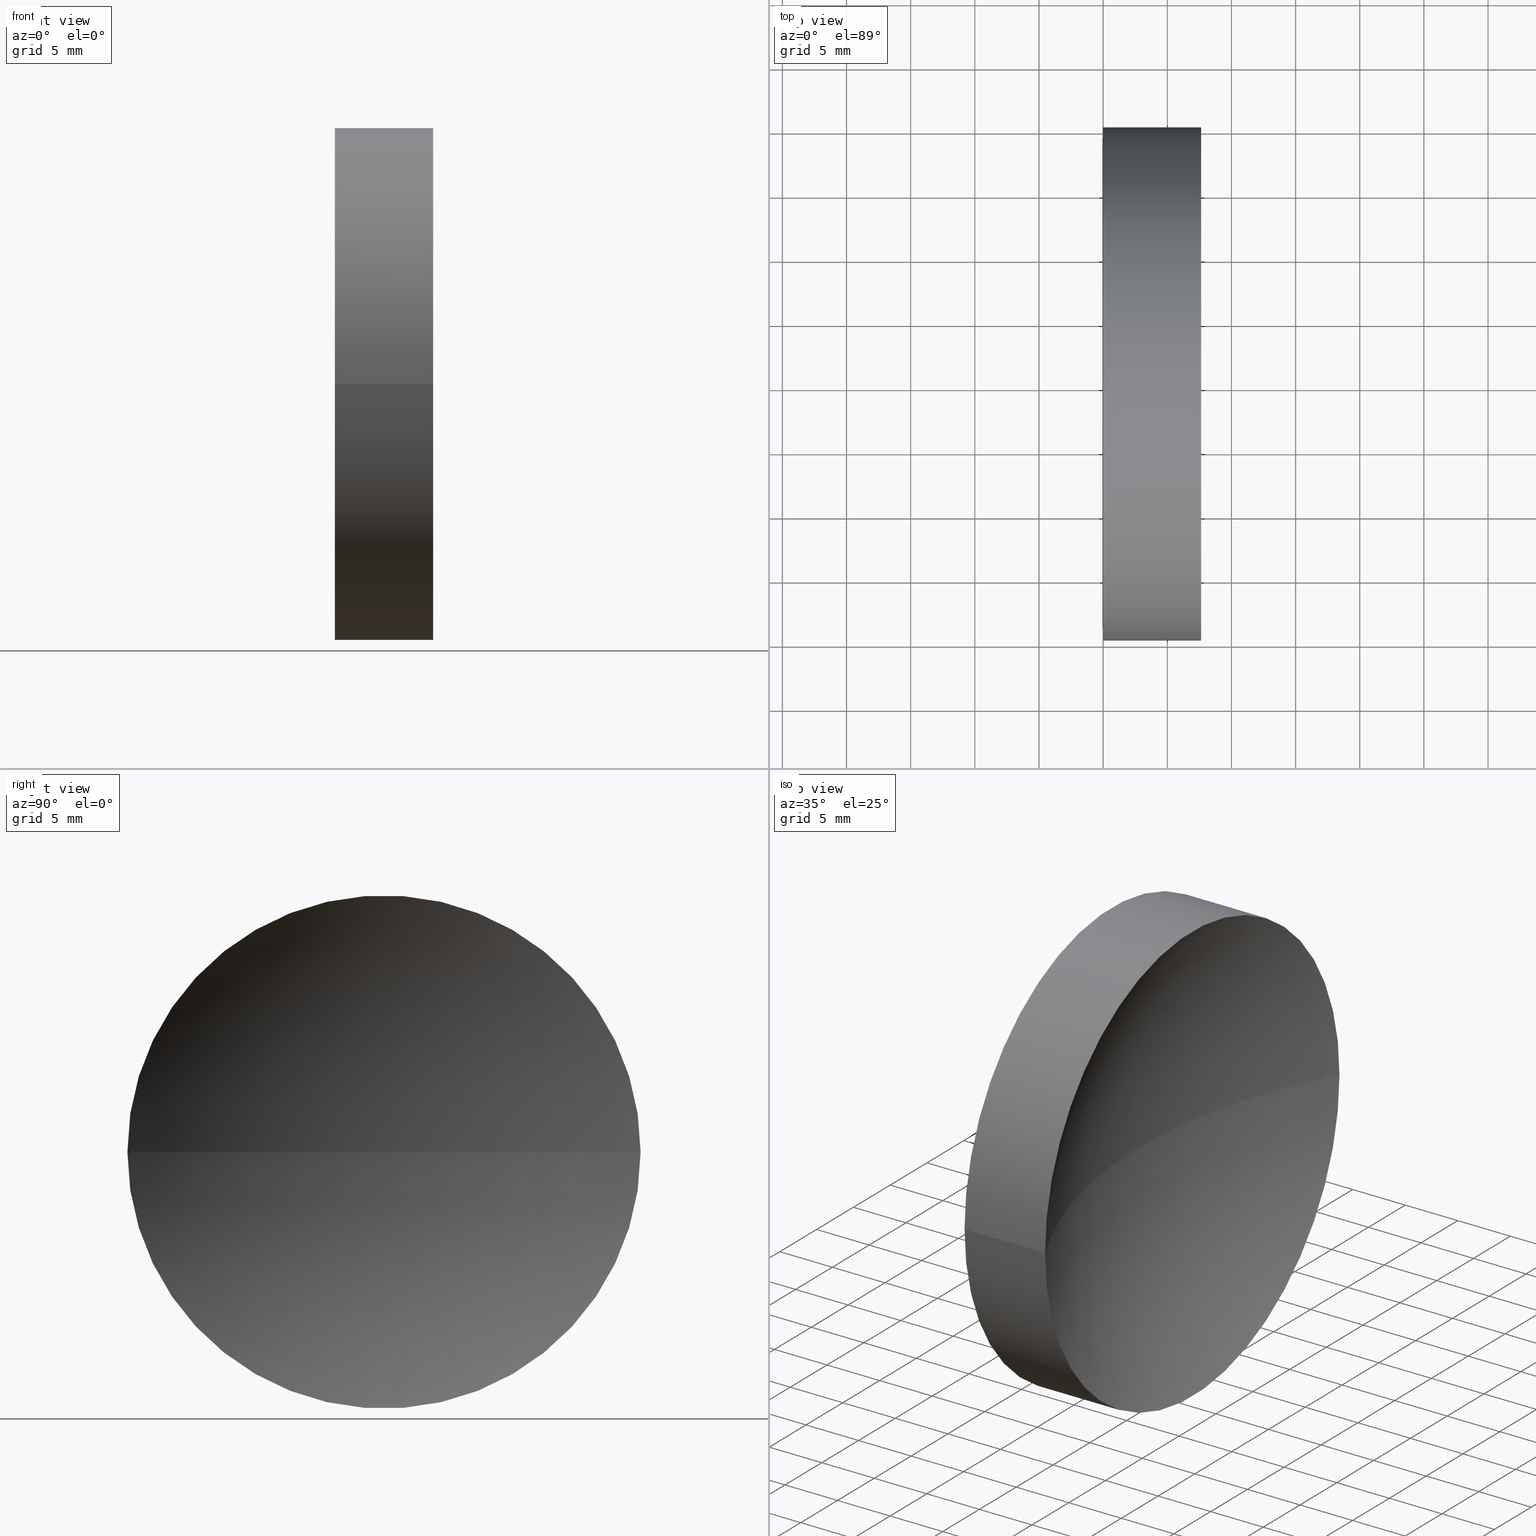
[diagram: canonical four-view strip — front | top / right | iso, engineering-drawing reading convention]
A machine part, canonical four-view strip (front | top / right | iso — engineering-drawing reading convention). The complete STEP part file that produces these views, byte-faithful:
ISO-10303-21;
HEADER;
FILE_DESCRIPTION (( 'STEP AP214' ),
    '1' );
FILE_NAME ('120166.STEP',
    '2019-06-21T02:47:09',
    ( '' ),
    ( '' ),
    'SwSTEP 2.0',
    'SolidWorks 2016',
    '' );
FILE_SCHEMA (( 'AUTOMOTIVE_DESIGN' ));
ENDSEC;

DATA;
#1 = ORIENTED_EDGE ( 'NONE', *, *, #103, .T. ) ;
#2 = COLOUR_RGB ( '',1.000000000000000000, 1.000000000000000000, 1.000000000000000000 ) ;
#3 = EDGE_CURVE ( 'NONE', #105, #70, #32, .T. ) ;
#4 = CARTESIAN_POINT ( 'NONE',  ( 158.7754446795023000, 65.15745356914861500, 0.0000000000000000000 ) ) ;
#5 = ADVANCED_FACE ( 'NONE', ( #165 ), #52, .T. ) ;
#6 =( GEOMETRIC_REPRESENTATION_CONTEXT ( 3 ) GLOBAL_UNCERTAINTY_ASSIGNED_CONTEXT ( ( #9 ) ) GLOBAL_UNIT_ASSIGNED_CONTEXT ( ( #66, #65, #162 ) ) REPRESENTATION_CONTEXT ( 'NONE', 'WORKASPACE' ) );
#7 = EDGE_CURVE ( 'NONE', #58, #105, #145, .T. ) ;
#8 = FILL_AREA_STYLE_COLOUR ( '', #20 ) ;
#9 = UNCERTAINTY_MEASURE_WITH_UNIT (LENGTH_MEASURE( 1.000000000000000100E-005 ), #66, 'distance_accuracy_value', 'NONE');
#10 = DIRECTION ( 'NONE',  ( 0.0000000000000000000, -0.0000000000000000000, -1.000000000000000000 ) ) ;
#11 = ORIENTED_EDGE ( 'NONE', *, *, #17, .F. ) ;
#12 = APPLICATION_PROTOCOL_DEFINITION ( 'draft international standard', 'automotive_design', 1998, #166 ) ;
#13 =( NAMED_UNIT ( * ) PLANE_ANGLE_UNIT ( ) SI_UNIT ( $, .RADIAN. ) );
#14 = AXIS2_PLACEMENT_3D ( 'NONE', #62, #146, #33 ) ;
#15 = FILL_AREA_STYLE ('',( #100 ) ) ;
#16 = SPHERICAL_SURFACE ( 'NONE', #131, 41.29999999999999700 ) ;
#17 = EDGE_CURVE ( 'NONE', #58, #70, #64, .T. ) ;
#18 = CARTESIAN_POINT ( 'NONE',  ( 110.0147892488423800, 85.15745182658621100, 2.449293598294708100E-015 ) ) ;
#19 = ORIENTED_EDGE ( 'NONE', *, *, #3, .T. ) ;
#20 = COLOUR_RGB ( '',1.000000000000000000, 1.000000000000000000, 1.000000000000000000 ) ;
#21 = DIRECTION ( 'NONE',  ( -6.938893903907224400E-016, -1.000000000000000000, 0.0000000000000000000 ) ) ;
#22 = CARTESIAN_POINT ( 'NONE',  ( 158.7754446795023000, 65.15745356914861500, 0.0000000000000000000 ) ) ;
#23 = UNCERTAINTY_MEASURE_WITH_UNIT (LENGTH_MEASURE( 1.000000000000000100E-005 ), #137, 'distance_accuracy_value', 'NONE');
#24 = ORIENTED_EDGE ( 'NONE', *, *, #3, .F. ) ;
#25 = CIRCLE ( 'NONE', #143, 20.00000000000001100 ) ;
#26 = SURFACE_SIDE_STYLE ('',( #80 ) ) ;
#27 = DIRECTION ( 'NONE',  ( -1.000000000000000000, 6.488933942079480100E-016, -0.0000000000000000000 ) ) ;
#28 = DIRECTION ( 'NONE',  ( -1.000000000000000000, 6.488933942079480100E-016, -0.0000000000000000000 ) ) ;
#29 = ORIENTED_EDGE ( 'NONE', *, *, #124, .T. ) ;
#30 = PRODUCT ( '120166', '120166', '', ( #120 ) ) ;
#31 = ADVANCED_FACE ( 'NONE', ( #132 ), #127, .F. ) ;
#32 = CIRCLE ( 'NONE', #141, 41.30000000000000400 ) ;
#33 = DIRECTION ( 'NONE',  ( -6.720478357295136600E-016, -1.000000000000000000, 0.0000000000000000000 ) ) ;
#34 = PRODUCT_DEFINITION_SHAPE ( 'NONE', 'NONE',  #116 ) ;
#35 = CARTESIAN_POINT ( 'NONE',  ( 114.9754472601862300, 65.15745182658619700, 0.0000000000000000000 ) ) ;
#36 = ORIENTED_EDGE ( 'NONE', *, *, #112, .T. ) ;
#37 = FILL_AREA_STYLE ('',( #8 ) ) ;
#38 = PRODUCT_RELATED_PRODUCT_CATEGORY ( 'part', '', ( #30 ) ) ;
#39 = CARTESIAN_POINT ( 'NONE',  ( 114.9754472601862100, 65.15745182658619700, 0.0000000000000000000 ) ) ;
#40 = ORIENTED_EDGE ( 'NONE', *, *, #7, .F. ) ;
#41 = VECTOR ( 'NONE', #75, 1000.000000000000000 ) ;
#42 = DIRECTION ( 'NONE',  ( -6.938893903907224400E-016, -1.000000000000000000, 0.0000000000000000000 ) ) ;
#43 = DIRECTION ( 'NONE',  ( -6.938893903907224400E-016, -1.000000000000000000, 0.0000000000000000000 ) ) ;
#44 = ORIENTED_EDGE ( 'NONE', *, *, #151, .T. ) ;
#45 = AXIS2_PLACEMENT_3D ( 'NONE', #22, #159, #96 ) ;
#46 = PRODUCT_DEFINITION_FORMATION_WITH_SPECIFIED_SOURCE ( '�κ�', '', #30, .NOT_KNOWN. ) ;
#47 = DIRECTION ( 'NONE',  ( -1.000000000000000000, 0.0000000000000000000, 0.0000000000000000000 ) ) ;
#48 = ADVANCED_FACE ( 'NONE', ( #83 ), #93, .F. ) ;
#49 = ORIENTED_EDGE ( 'NONE', *, *, #158, .T. ) ;
#50 = ADVANCED_FACE ( 'NONE', ( #156 ), #16, .F. ) ;
#51 = DIRECTION ( 'NONE',  ( 1.000000000000000000, -6.488933942079480100E-016, 0.0000000000000000000 ) ) ;
#52 = CYLINDRICAL_SURFACE ( 'NONE', #164, 20.00000000000001100 ) ;
#53 =( GEOMETRIC_REPRESENTATION_CONTEXT ( 3 ) GLOBAL_UNCERTAINTY_ASSIGNED_CONTEXT ( ( #23 ) ) GLOBAL_UNIT_ASSIGNED_CONTEXT ( ( #137, #13, #152 ) ) REPRESENTATION_CONTEXT ( 'NONE', 'WORKASPACE' ) );
#54 =( NAMED_UNIT ( * ) PLANE_ANGLE_UNIT ( ) SI_UNIT ( $, .RADIAN. ) );
#55 = DIRECTION ( 'NONE',  ( 0.0000000000000000000, 0.0000000000000000000, 1.000000000000000000 ) ) ;
#56 = APPLICATION_CONTEXT ( 'automotive_design' ) ;
#57 = VECTOR ( 'NONE', #85, 1000.000000000000000 ) ;
#58 = VERTEX_POINT ( 'NONE', #115 ) ;
#59 = MANIFOLD_SOLID_BREP ( '��ת1', #138 ) ;
#60 = STYLED_ITEM ( 'NONE', ( #150 ), #59 ) ;
#61 = AXIS2_PLACEMENT_3D ( 'NONE', #35, #51, #98 ) ;
#62 = CARTESIAN_POINT ( 'NONE',  ( 158.7754446795023000, 65.15745356914861500, 0.0000000000000000000 ) ) ;
#63 = DIRECTION ( 'NONE',  ( -6.720478357295136600E-016, -1.000000000000000000, 0.0000000000000000000 ) ) ;
#64 = CIRCLE ( 'NONE', #45, 41.29999999999999700 ) ;
#65 =( NAMED_UNIT ( * ) PLANE_ANGLE_UNIT ( ) SI_UNIT ( $, .RADIAN. ) );
#66 =( LENGTH_UNIT ( ) NAMED_UNIT ( * ) SI_UNIT ( .MILLI., .METRE. ) );
#67 = LINE ( 'NONE', #118, #41 ) ;
#68 = AXIS2_PLACEMENT_3D ( 'NONE', #110, #82, #21 ) ;
#69 = EDGE_LOOP ( 'NONE', ( #49, #44 ) ) ;
#70 = VERTEX_POINT ( 'NONE', #77 ) ;
#71 = VERTEX_POINT ( 'NONE', #130 ) ;
#72 = DIRECTION ( 'NONE',  ( -1.000000000000000000, 6.488933942079480100E-016, -0.0000000000000000000 ) ) ;
#73 = CARTESIAN_POINT ( 'NONE',  ( 114.9754472601862300, 85.15745182658619700, 2.449293598294710100E-015 ) ) ;
#74 = STYLED_ITEM ( 'NONE', ( #144 ), #114 ) ;
#75 = DIRECTION ( 'NONE',  ( -1.000000000000000000, 6.488933942079480100E-016, -0.0000000000000000000 ) ) ;
#76 =( NAMED_UNIT ( * ) SI_UNIT ( $, .STERADIAN. ) SOLID_ANGLE_UNIT ( ) );
#77 = CARTESIAN_POINT ( 'NONE',  ( 117.4754446795023000, 65.15745356914864300, 0.0000000000000000000 ) ) ;
#78 = ORIENTED_EDGE ( 'NONE', *, *, #103, .F. ) ;
#79 = SURFACE_STYLE_FILL_AREA ( #37 ) ;
#80 = SURFACE_STYLE_FILL_AREA ( #15 ) ;
#81 = CARTESIAN_POINT ( 'NONE',  ( 110.0147892488423600, 65.15745182658619700, 0.0000000000000000000 ) ) ;
#82 = DIRECTION ( 'NONE',  ( -1.000000000000000000, 6.488933942079480100E-016, -0.0000000000000000000 ) ) ;
#83 = FACE_OUTER_BOUND ( 'NONE', #125, .T. ) ;
#84 = AXIS2_PLACEMENT_3D ( 'NONE', #129, #28, #42 ) ;
#85 = DIRECTION ( 'NONE',  ( -1.000000000000000000, 6.488933942079480100E-016, -0.0000000000000000000 ) ) ;
#86 = APPLICATION_PROTOCOL_DEFINITION ( 'draft international standard', 'automotive_design', 1998, #56 ) ;
#87 = DIRECTION ( 'NONE',  ( 1.000000000000000000, 0.0000000000000000000, 0.0000000000000000000 ) ) ;
#88 = CIRCLE ( 'NONE', #154, 20.00000000000000400 ) ;
#89 = SURFACE_STYLE_USAGE ( .BOTH. , #26 ) ;
#90 = ORIENTED_EDGE ( 'NONE', *, *, #124, .F. ) ;
#91 = FACE_OUTER_BOUND ( 'NONE', #148, .T. ) ;
#92 = MECHANICAL_DESIGN_GEOMETRIC_PRESENTATION_REPRESENTATION (  '', ( #60 ), #53 ) ;
#93 = SPHERICAL_SURFACE ( 'NONE', #14, 41.29999999999999700 ) ;
#94 = DIRECTION ( 'NONE',  ( -6.938893903907224400E-016, -1.000000000000000000, 0.0000000000000000000 ) ) ;
#95 = PRESENTATION_LAYER_ASSIGNMENT (  '', '', ( #74 ) ) ;
#96 = DIRECTION ( 'NONE',  ( 0.0000000000000000000, -1.000000000000000000, -1.224646799147353200E-016 ) ) ;
#97 = EDGE_LOOP ( 'NONE', ( #36, #1, #133, #90 ) ) ;
#98 = DIRECTION ( 'NONE',  ( 6.488933942079480100E-016, 1.000000000000000000, 0.0000000000000000000 ) ) ;
#99 = SURFACE_STYLE_USAGE ( .BOTH. , #147 ) ;
#100 = FILL_AREA_STYLE_COLOUR ( '', #2 ) ;
#101 = ORIENTED_EDGE ( 'NONE', *, *, #112, .F. ) ;
#102 =( LENGTH_UNIT ( ) NAMED_UNIT ( * ) SI_UNIT ( .MILLI., .METRE. ) );
#103 = EDGE_CURVE ( 'NONE', #58, #122, #117, .T. ) ;
#104 = CARTESIAN_POINT ( 'NONE',  ( 122.6411110105041300, 45.15745356914861500, 0.0000000000000000000 ) ) ;
#105 = VERTEX_POINT ( 'NONE', #104 ) ;
#106 =( GEOMETRIC_REPRESENTATION_CONTEXT ( 3 ) GLOBAL_UNCERTAINTY_ASSIGNED_CONTEXT ( ( #155 ) ) GLOBAL_UNIT_ASSIGNED_CONTEXT ( ( #102, #54, #76 ) ) REPRESENTATION_CONTEXT ( 'NONE', 'WORKASPACE' ) );
#107 = ORIENTED_EDGE ( 'NONE', *, *, #151, .F. ) ;
#108 = SHAPE_DEFINITION_REPRESENTATION ( #34, #114 ) ;
#109 = PRODUCT_DEFINITION_CONTEXT ( 'detailed design', #166, 'design' ) ;
#110 = CARTESIAN_POINT ( 'NONE',  ( 122.6411110105041300, 65.15745182658618300, 0.0000000000000000000 ) ) ;
#111 = AXIS2_PLACEMENT_3D ( 'NONE', #149, #55, #87 ) ;
#112 = EDGE_CURVE ( 'NONE', #105, #58, #25, .T. ) ;
#113 = CARTESIAN_POINT ( 'NONE',  ( 158.7754446795023000, 65.15745356914861500, 0.0000000000000000000 ) ) ;
#114 = ADVANCED_BREP_SHAPE_REPRESENTATION ( '120166', ( #59, #111 ), #6 ) ;
#115 = CARTESIAN_POINT ( 'NONE',  ( 122.6411110105041500, 85.15745182658621100, 2.449293384892355000E-015 ) ) ;
#116 = PRODUCT_DEFINITION ( 'δ֪', '', #46, #109 ) ;
#117 = LINE ( 'NONE', #18, #57 ) ;
#118 = CARTESIAN_POINT ( 'NONE',  ( 110.0147892488423500, 45.15745182658618300, 0.0000000000000000000 ) ) ;
#119 = DIRECTION ( 'NONE',  ( -6.938893903907227400E-016, -1.000000000000000000, 0.0000000000000000000 ) ) ;
#120 = PRODUCT_CONTEXT ( 'NONE', #56, 'mechanical' ) ;
#121 = CARTESIAN_POINT ( 'NONE',  ( 114.9754472601862100, 65.15745182658619700, 0.0000000000000000000 ) ) ;
#122 = VERTEX_POINT ( 'NONE', #73 ) ;
#123 = PRESENTATION_LAYER_ASSIGNMENT (  '', '', ( #60 ) ) ;
#124 = EDGE_CURVE ( 'NONE', #105, #71, #67, .T. ) ;
#125 = EDGE_LOOP ( 'NONE', ( #11, #101, #19 ) ) ;
#126 = ADVANCED_FACE ( 'NONE', ( #91 ), #161, .T. ) ;
#127 = PLANE ( 'NONE',  #61 ) ;
#128 = DIRECTION ( 'NONE',  ( -1.000000000000000000, 6.488933942079480100E-016, -0.0000000000000000000 ) ) ;
#129 = CARTESIAN_POINT ( 'NONE',  ( 110.0147892488423600, 65.15745182658619700, 0.0000000000000000000 ) ) ;
#130 = CARTESIAN_POINT ( 'NONE',  ( 114.9754472601862000, 45.15745182658619000, 0.0000000000000000000 ) ) ;
#131 = AXIS2_PLACEMENT_3D ( 'NONE', #113, #134, #63 ) ;
#132 = FACE_OUTER_BOUND ( 'NONE', #69, .T. ) ;
#133 = ORIENTED_EDGE ( 'NONE', *, *, #158, .F. ) ;
#134 = DIRECTION ( 'NONE',  ( 0.0000000000000000000, 0.0000000000000000000, 1.000000000000000000 ) ) ;
#135 = DIRECTION ( 'NONE',  ( -1.000000000000000000, 6.488933942079480100E-016, -0.0000000000000000000 ) ) ;
#136 = AXIS2_PLACEMENT_3D ( 'NONE', #121, #128, #140 ) ;
#137 =( LENGTH_UNIT ( ) NAMED_UNIT ( * ) SI_UNIT ( .MILLI., .METRE. ) );
#138 = CLOSED_SHELL ( 'NONE', ( #5, #50, #48, #126, #31 ) ) ;
#139 = CARTESIAN_POINT ( 'NONE',  ( 122.6411110105041300, 65.15745182658618300, 0.0000000000000000000 ) ) ;
#140 = DIRECTION ( 'NONE',  ( -6.938893903907227400E-016, -1.000000000000000000, 0.0000000000000000000 ) ) ;
#141 = AXIS2_PLACEMENT_3D ( 'NONE', #4, #10, #47 ) ;
#142 = ORIENTED_EDGE ( 'NONE', *, *, #7, .T. ) ;
#143 = AXIS2_PLACEMENT_3D ( 'NONE', #139, #27, #43 ) ;
#144 = PRESENTATION_STYLE_ASSIGNMENT (( #89 ) ) ;
#145 = CIRCLE ( 'NONE', #68, 20.00000000000001100 ) ;
#146 = DIRECTION ( 'NONE',  ( 0.0000000000000000000, 0.0000000000000000000, 1.000000000000000000 ) ) ;
#147 = SURFACE_SIDE_STYLE ('',( #79 ) ) ;
#148 = EDGE_LOOP ( 'NONE', ( #78, #142, #29, #107 ) ) ;
#149 = CARTESIAN_POINT ( 'NONE',  ( 0.0000000000000000000, 0.0000000000000000000, 0.0000000000000000000 ) ) ;
#150 = PRESENTATION_STYLE_ASSIGNMENT (( #99 ) ) ;
#151 = EDGE_CURVE ( 'NONE', #122, #71, #88, .T. ) ;
#152 =( NAMED_UNIT ( * ) SI_UNIT ( $, .STERADIAN. ) SOLID_ANGLE_UNIT ( ) );
#153 = EDGE_LOOP ( 'NONE', ( #40, #160, #24 ) ) ;
#154 = AXIS2_PLACEMENT_3D ( 'NONE', #39, #72, #119 ) ;
#155 = UNCERTAINTY_MEASURE_WITH_UNIT (LENGTH_MEASURE( 1.000000000000000100E-005 ), #102, 'distance_accuracy_value', 'NONE');
#156 = FACE_OUTER_BOUND ( 'NONE', #153, .T. ) ;
#157 = CIRCLE ( 'NONE', #136, 20.00000000000000400 ) ;
#158 = EDGE_CURVE ( 'NONE', #71, #122, #157, .T. ) ;
#159 = DIRECTION ( 'NONE',  ( -7.946652182046252500E-032, -1.224646799147353200E-016, 1.000000000000000000 ) ) ;
#160 = ORIENTED_EDGE ( 'NONE', *, *, #17, .T. ) ;
#161 = CYLINDRICAL_SURFACE ( 'NONE', #84, 20.00000000000001100 ) ;
#162 =( NAMED_UNIT ( * ) SI_UNIT ( $, .STERADIAN. ) SOLID_ANGLE_UNIT ( ) );
#163 = MECHANICAL_DESIGN_GEOMETRIC_PRESENTATION_REPRESENTATION (  '', ( #74 ), #106 ) ;
#164 = AXIS2_PLACEMENT_3D ( 'NONE', #81, #135, #94 ) ;
#165 = FACE_OUTER_BOUND ( 'NONE', #97, .T. ) ;
#166 = APPLICATION_CONTEXT ( 'automotive_design' ) ;
ENDSEC;
END-ISO-10303-21;
